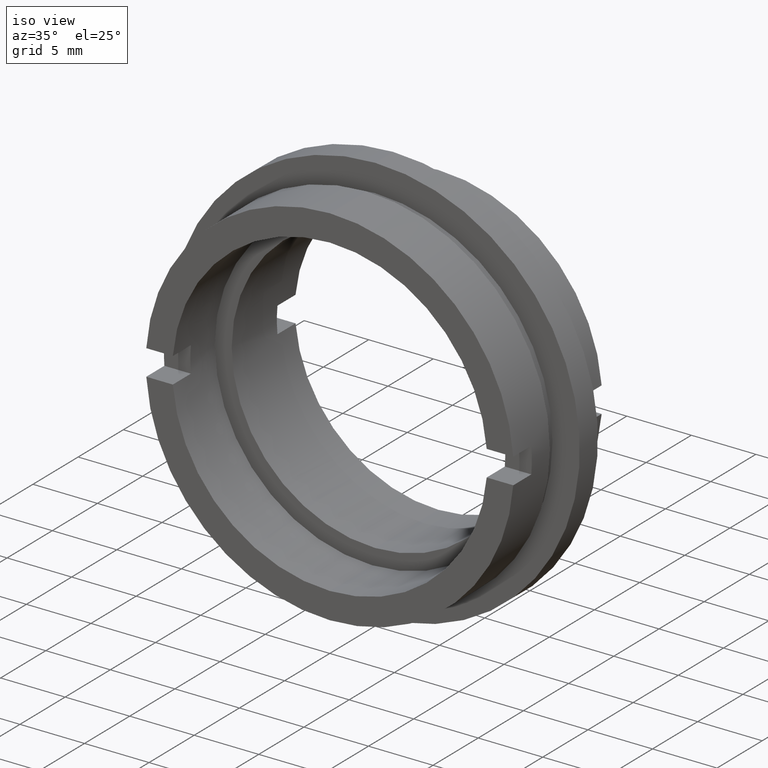
[diagram: clean part render]
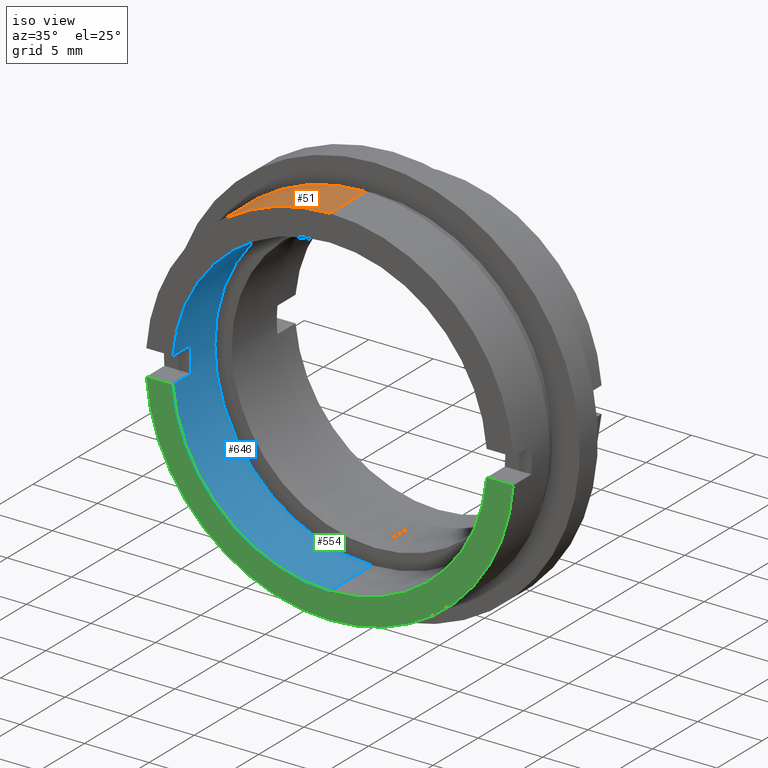
[diagram: same view with three faces highlighted in distinct colors, each labeled with its STEP entity id]
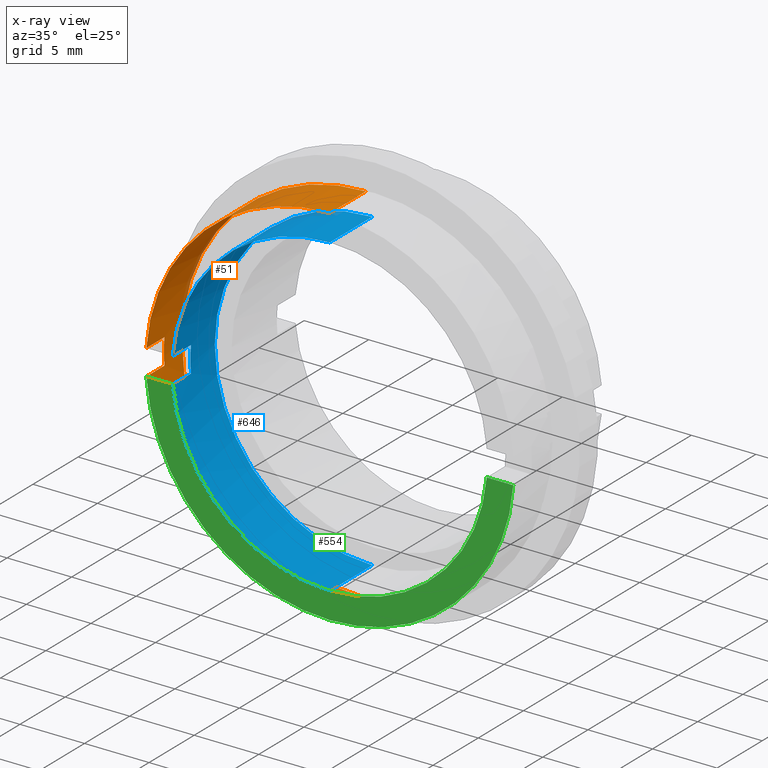
[diagram: x-ray of the same camera — body ghosted, the three highlighted faces saturated]
A machine part, iso view with three faces highlighted in distinct colors.
The next image is the same camera in x-ray (body ghosted, the three faces saturated) — at least one of them is partly hidden behind the body in this view.
Their STEP definitions:

[orange] entity #51 — the highlighted cylindrical surface (partial cylindrical patch) has radius 14.25 mm, axis along (-0, 1, -0).
#18 = LINE ( 'NONE', #288, #382 ) ;
#26 = ORIENTED_EDGE ( 'NONE', *, *, #483, .T. ) ;
#51 = ADVANCED_FACE ( 'NONE', ( #140 ), #834, .T. ) ;
#107 = DIRECTION ( 'NONE',  ( -0.0000000000000000000, 1.000000000000000000, -0.0000000000000000000 ) ) ;
#111 = CARTESIAN_POINT ( 'NONE',  ( -14.21486897582949600, 2.000000000000000000, -0.9999999999999995600 ) ) ;
#126 = CARTESIAN_POINT ( 'NONE',  ( 1.745121688784977800E-015, 0.0000000000000000000, -14.24999999999999600 ) ) ;
#138 = DIRECTION ( 'NONE',  ( 0.0000000000000000000, 0.0000000000000000000, 1.000000000000000000 ) ) ;
#140 = FACE_OUTER_BOUND ( 'NONE', #348, .T. ) ;
#150 = ORIENTED_EDGE ( 'NONE', *, *, #1271, .F. ) ;
#159 = DIRECTION ( 'NONE',  ( -0.0000000000000000000, 1.000000000000000000, -0.0000000000000000000 ) ) ;
#210 = CIRCLE ( 'NONE', #564, 14.24999999999999600 ) ;
#220 = ORIENTED_EDGE ( 'NONE', *, *, #536, .F. ) ;
#263 = VECTOR ( 'NONE', #654, 1000.000000000000000 ) ;
#268 = CARTESIAN_POINT ( 'NONE',  ( -14.21486897582949800, 0.0000000000000000000, 1.000000000000000000 ) ) ;
#272 = AXIS2_PLACEMENT_3D ( 'NONE', #580, #979, #776 ) ;
#283 = DIRECTION ( 'NONE',  ( -0.0000000000000000000, 1.000000000000000000, -0.0000000000000000000 ) ) ;
#288 = CARTESIAN_POINT ( 'NONE',  ( -14.21486897582949800, 22.67749945107591400, 1.000000000000003800 ) ) ;
#302 = DIRECTION ( 'NONE',  ( -0.0000000000000000000, -1.000000000000000000, -0.0000000000000000000 ) ) ;
#305 = CARTESIAN_POINT ( 'NONE',  ( 0.0000000000000000000, 1.999999999999998200, 0.0000000000000000000 ) ) ;
#313 = DIRECTION ( 'NONE',  ( 0.0000000000000000000, 0.0000000000000000000, 1.000000000000000000 ) ) ;
#327 = AXIS2_PLACEMENT_3D ( 'NONE', #575, #604, #599 ) ;
#348 = EDGE_LOOP ( 'NONE', ( #1005, #760, #860, #150, #695, #26, #1004, #220 ) ) ;
#382 = VECTOR ( 'NONE', #283, 1000.000000000000000 ) ;
#402 = LINE ( 'NONE', #712, #567 ) ;
#482 = DIRECTION ( 'NONE',  ( 0.0000000000000000000, 0.0000000000000000000, 1.000000000000000000 ) ) ;
#483 = EDGE_CURVE ( 'NONE', #696, #1335, #210, .T. ) ;
#533 = CARTESIAN_POINT ( 'NONE',  ( -14.21486897582949800, 0.0000000000000000000, -1.000000000000000000 ) ) ;
#536 = EDGE_CURVE ( 'NONE', #1291, #1201, #1212, .T. ) ;
#546 = AXIS2_PLACEMENT_3D ( 'NONE', #305, #302, #313 ) ;
#564 = AXIS2_PLACEMENT_3D ( 'NONE', #1135, #159, #138 ) ;
#567 = VECTOR ( 'NONE', #708, 1000.000000000000000 ) ;
#570 = VERTEX_POINT ( 'NONE', #111 ) ;
#575 = CARTESIAN_POINT ( 'NONE',  ( 0.0000000000000000000, 0.0000000000000000000, 0.0000000000000000000 ) ) ;
#579 = CARTESIAN_POINT ( 'NONE',  ( 1.745121688784977800E-015, 4.000000000000000000, -14.24999999999999600 ) ) ;
#580 = CARTESIAN_POINT ( 'NONE',  ( 0.0000000000000000000, 4.000000000000000000, 0.0000000000000000000 ) ) ;
#596 = CARTESIAN_POINT ( 'NONE',  ( 0.0000000000000000000, 4.000000000000000000, 14.24999999999999600 ) ) ;
#599 = DIRECTION ( 'NONE',  ( 0.0000000000000000000, 0.0000000000000000000, 1.000000000000000000 ) ) ;
#604 = DIRECTION ( 'NONE',  ( -0.0000000000000000000, 1.000000000000000000, -0.0000000000000000000 ) ) ;
#625 = CARTESIAN_POINT ( 'NONE',  ( -14.21486897582949800, 1.999999999999998200, 1.000000000000000200 ) ) ;
#654 = DIRECTION ( 'NONE',  ( -0.0000000000000000000, 1.000000000000000000, -0.0000000000000000000 ) ) ;
#676 = AXIS2_PLACEMENT_3D ( 'NONE', #1264, #107, #482 ) ;
#695 = ORIENTED_EDGE ( 'NONE', *, *, #1254, .F. ) ;
#696 = VERTEX_POINT ( 'NONE', #268 ) ;
#708 = DIRECTION ( 'NONE',  ( 0.0000000000000000000, -1.000000000000000000, 0.0000000000000000000 ) ) ;
#712 = CARTESIAN_POINT ( 'NONE',  ( -14.21486897582949600, 22.67749945107591400, -0.9999999999999943400 ) ) ;
#716 = VECTOR ( 'NONE', #746, 1000.000000000000000 ) ;
#746 = DIRECTION ( 'NONE',  ( -0.0000000000000000000, 1.000000000000000000, -0.0000000000000000000 ) ) ;
#760 = ORIENTED_EDGE ( 'NONE', *, *, #1184, .T. ) ;
#765 = CARTESIAN_POINT ( 'NONE',  ( 0.0000000000000000000, 0.0000000000000000000, 14.24999999999999600 ) ) ;
#776 = DIRECTION ( 'NONE',  ( 0.0000000000000000000, 0.0000000000000000000, 1.000000000000000000 ) ) ;
#817 = CARTESIAN_POINT ( 'NONE',  ( 1.745121688784977800E-015, 22.67749945107591400, -14.24999999999999600 ) ) ;
#834 = CYLINDRICAL_SURFACE ( 'NONE', #676, 14.24999999999999600 ) ;
#860 = ORIENTED_EDGE ( 'NONE', *, *, #1165, .F. ) ;
#878 = EDGE_CURVE ( 'NONE', #1335, #1201, #1002, .T. ) ;
#906 = CIRCLE ( 'NONE', #546, 14.24999999999999600 ) ;
#979 = DIRECTION ( 'NONE',  ( -0.0000000000000000000, 1.000000000000000000, -0.0000000000000000000 ) ) ;
#1002 = LINE ( 'NONE', #1060, #263 ) ;
#1004 = ORIENTED_EDGE ( 'NONE', *, *, #878, .T. ) ;
#1005 = ORIENTED_EDGE ( 'NONE', *, *, #1324, .F. ) ;
#1028 = LINE ( 'NONE', #817, #716 ) ;
#1060 = CARTESIAN_POINT ( 'NONE',  ( 0.0000000000000000000, 22.67749945107591400, 14.24999999999999600 ) ) ;
#1086 = VERTEX_POINT ( 'NONE', #625 ) ;
#1135 = CARTESIAN_POINT ( 'NONE',  ( 0.0000000000000000000, 0.0000000000000000000, 0.0000000000000000000 ) ) ;
#1165 = EDGE_CURVE ( 'NONE', #570, #1316, #402, .T. ) ;
#1184 = EDGE_CURVE ( 'NONE', #1244, #1316, #1258, .T. ) ;
#1201 = VERTEX_POINT ( 'NONE', #596 ) ;
#1212 = CIRCLE ( 'NONE', #272, 14.24999999999999600 ) ;
#1244 = VERTEX_POINT ( 'NONE', #126 ) ;
#1254 = EDGE_CURVE ( 'NONE', #696, #1086, #18, .T. ) ;
#1258 = CIRCLE ( 'NONE', #327, 14.24999999999999600 ) ;
#1264 = CARTESIAN_POINT ( 'NONE',  ( 0.0000000000000000000, 22.67749945107591400, 0.0000000000000000000 ) ) ;
#1271 = EDGE_CURVE ( 'NONE', #1086, #570, #906, .T. ) ;
#1291 = VERTEX_POINT ( 'NONE', #579 ) ;
#1316 = VERTEX_POINT ( 'NONE', #533 ) ;
#1324 = EDGE_CURVE ( 'NONE', #1244, #1291, #1028, .T. ) ;
#1335 = VERTEX_POINT ( 'NONE', #765 ) ;

[blue] entity #646 — the highlighted cylindrical surface (partial cylindrical patch) has radius 12.2 mm, axis along (-0, 1, -0).
#10 = AXIS2_PLACEMENT_3D ( 'NONE', #827, #833, #1120 ) ;
#39 = CARTESIAN_POINT ( 'NONE',  ( -12.15894732285652700, 22.67749945107591400, 1.000000000000003800 ) ) ;
#45 = CARTESIAN_POINT ( 'NONE',  ( 0.0000000000000000000, 0.0000000000000000000, 12.19999999999999600 ) ) ;
#49 = DIRECTION ( 'NONE',  ( 0.0000000000000000000, 0.0000000000000000000, 1.000000000000000000 ) ) ;
#65 = DIRECTION ( 'NONE',  ( -0.0000000000000000000, 1.000000000000000000, -0.0000000000000000000 ) ) ;
#84 = CIRCLE ( 'NONE', #787, 12.19999999999999400 ) ;
#102 = ORIENTED_EDGE ( 'NONE', *, *, #705, .F. ) ;
#118 = ORIENTED_EDGE ( 'NONE', *, *, #503, .F. ) ;
#122 = CARTESIAN_POINT ( 'NONE',  ( 1.494069094959770300E-015, 4.699999999999999300, -12.19999999999999400 ) ) ;
#124 = CIRCLE ( 'NONE', #10, 12.19999999999999600 ) ;
#182 = CYLINDRICAL_SURFACE ( 'NONE', #999, 12.19999999999999600 ) ;
#204 = CARTESIAN_POINT ( 'NONE',  ( -12.15894732285652300, 2.000000000000000000, -0.9999999999999995600 ) ) ;
#227 = CARTESIAN_POINT ( 'NONE',  ( 0.0000000000000000000, 4.699999999999999300, 0.0000000000000000000 ) ) ;
#236 = EDGE_CURVE ( 'NONE', #354, #629, #124, .T. ) ;
#253 = ORIENTED_EDGE ( 'NONE', *, *, #236, .F. ) ;
#274 = FACE_OUTER_BOUND ( 'NONE', #338, .T. ) ;
#325 = AXIS2_PLACEMENT_3D ( 'NONE', #1034, #637, #399 ) ;
#338 = EDGE_LOOP ( 'NONE', ( #253, #590, #803, #459, #992, #102, #118, #822 ) ) ;
#354 = VERTEX_POINT ( 'NONE', #869 ) ;
#359 = DIRECTION ( 'NONE',  ( -0.0000000000000000000, 1.000000000000000000, -0.0000000000000000000 ) ) ;
#371 = VERTEX_POINT ( 'NONE', #204 ) ;
#385 = VECTOR ( 'NONE', #578, 1000.000000000000000 ) ;
#399 = DIRECTION ( 'NONE',  ( 0.0000000000000000000, 0.0000000000000000000, 1.000000000000000000 ) ) ;
#432 = VERTEX_POINT ( 'NONE', #1248 ) ;
#452 = VECTOR ( 'NONE', #644, 1000.000000000000000 ) ;
#454 = LINE ( 'NONE', #583, #385 ) ;
#455 = CARTESIAN_POINT ( 'NONE',  ( 0.0000000000000000000, 22.67749945107591400, 0.0000000000000000000 ) ) ;
#459 = ORIENTED_EDGE ( 'NONE', *, *, #950, .F. ) ;
#503 = EDGE_CURVE ( 'NONE', #371, #432, #565, .T. ) ;
#539 = CARTESIAN_POINT ( 'NONE',  ( 0.0000000000000000000, 22.67749945107591400, 12.19999999999999600 ) ) ;
#565 = CIRCLE ( 'NONE', #325, 12.19999999999999600 ) ;
#568 = DIRECTION ( 'NONE',  ( 0.0000000000000000000, -1.000000000000000000, 0.0000000000000000000 ) ) ;
#578 = DIRECTION ( 'NONE',  ( -0.0000000000000000000, 1.000000000000000000, -0.0000000000000000000 ) ) ;
#583 = CARTESIAN_POINT ( 'NONE',  ( -12.15894732285652500, 22.67749945107591400, -0.9999999999999943400 ) ) ;
#590 = ORIENTED_EDGE ( 'NONE', *, *, #647, .T. ) ;
#602 = DIRECTION ( 'NONE',  ( 0.0000000000000000000, 0.0000000000000000000, 1.000000000000000000 ) ) ;
#629 = VERTEX_POINT ( 'NONE', #1274 ) ;
#637 = DIRECTION ( 'NONE',  ( 0.0000000000000000000, 1.000000000000000000, 0.0000000000000000000 ) ) ;
#643 = CIRCLE ( 'NONE', #828, 12.19999999999999600 ) ;
#644 = DIRECTION ( 'NONE',  ( -0.0000000000000000000, 1.000000000000000000, -0.0000000000000000000 ) ) ;
#646 = ADVANCED_FACE ( 'NONE', ( #274 ), #182, .F. ) ;
#647 = EDGE_CURVE ( 'NONE', #354, #764, #1063, .T. ) ;
#664 = EDGE_CURVE ( 'NONE', #764, #1053, #84, .T. ) ;
#666 = CARTESIAN_POINT ( 'NONE',  ( 0.0000000000000000000, 4.699999999999999300, 12.19999999999999400 ) ) ;
#679 = VECTOR ( 'NONE', #568, 1000.000000000000000 ) ;
#705 = EDGE_CURVE ( 'NONE', #432, #935, #1308, .T. ) ;
#764 = VERTEX_POINT ( 'NONE', #122 ) ;
#787 = AXIS2_PLACEMENT_3D ( 'NONE', #227, #65, #49 ) ;
#803 = ORIENTED_EDGE ( 'NONE', *, *, #664, .T. ) ;
#822 = ORIENTED_EDGE ( 'NONE', *, *, #846, .F. ) ;
#827 = CARTESIAN_POINT ( 'NONE',  ( 0.0000000000000000000, 0.0000000000000000000, 0.0000000000000000000 ) ) ;
#828 = AXIS2_PLACEMENT_3D ( 'NONE', #1213, #359, #602 ) ;
#833 = DIRECTION ( 'NONE',  ( -0.0000000000000000000, 1.000000000000000000, -0.0000000000000000000 ) ) ;
#846 = EDGE_CURVE ( 'NONE', #629, #371, #454, .T. ) ;
#869 = CARTESIAN_POINT ( 'NONE',  ( 1.494069094959770500E-015, 0.0000000000000000000, -12.19999999999999600 ) ) ;
#877 = DIRECTION ( 'NONE',  ( -0.0000000000000000000, 1.000000000000000000, -0.0000000000000000000 ) ) ;
#935 = VERTEX_POINT ( 'NONE', #1309 ) ;
#950 = EDGE_CURVE ( 'NONE', #1087, #1053, #1228, .T. ) ;
#992 = ORIENTED_EDGE ( 'NONE', *, *, #1027, .F. ) ;
#997 = CARTESIAN_POINT ( 'NONE',  ( 1.494069094959770500E-015, 22.67749945107591400, -12.19999999999999600 ) ) ;
#999 = AXIS2_PLACEMENT_3D ( 'NONE', #455, #1113, #1172 ) ;
#1027 = EDGE_CURVE ( 'NONE', #935, #1087, #643, .T. ) ;
#1034 = CARTESIAN_POINT ( 'NONE',  ( 0.0000000000000000000, 1.999999999999998200, 0.0000000000000000000 ) ) ;
#1053 = VERTEX_POINT ( 'NONE', #666 ) ;
#1063 = LINE ( 'NONE', #997, #452 ) ;
#1087 = VERTEX_POINT ( 'NONE', #45 ) ;
#1113 = DIRECTION ( 'NONE',  ( -0.0000000000000000000, 1.000000000000000000, -0.0000000000000000000 ) ) ;
#1120 = DIRECTION ( 'NONE',  ( 0.0000000000000000000, 0.0000000000000000000, 1.000000000000000000 ) ) ;
#1172 = DIRECTION ( 'NONE',  ( 0.0000000000000000000, 0.0000000000000000000, 1.000000000000000000 ) ) ;
#1213 = CARTESIAN_POINT ( 'NONE',  ( 0.0000000000000000000, 0.0000000000000000000, 0.0000000000000000000 ) ) ;
#1228 = LINE ( 'NONE', #539, #1241 ) ;
#1241 = VECTOR ( 'NONE', #877, 1000.000000000000000 ) ;
#1248 = CARTESIAN_POINT ( 'NONE',  ( -12.15894732285652700, 1.999999999999998200, 1.000000000000000200 ) ) ;
#1274 = CARTESIAN_POINT ( 'NONE',  ( -12.15894732285652900, 0.0000000000000000000, -0.9999999999999945600 ) ) ;
#1308 = LINE ( 'NONE', #39, #679 ) ;
#1309 = CARTESIAN_POINT ( 'NONE',  ( -12.15894732285652700, 0.0000000000000000000, 1.000000000000003800 ) ) ;

[green] entity #554 — the highlighted planar face has unit normal (0, -1, 0).
#5 = DIRECTION ( 'NONE',  ( 1.000000000000000000, 0.0000000000000000000, 0.0000000000000000000 ) ) ;
#9 = CARTESIAN_POINT ( 'NONE',  ( -14.24999999999999600, 0.0000000000000000000, -1.000000000000000000 ) ) ;
#10 = AXIS2_PLACEMENT_3D ( 'NONE', #827, #833, #1120 ) ;
#52 = AXIS2_PLACEMENT_3D ( 'NONE', #724, #904, #876 ) ;
#54 = DIRECTION ( 'NONE',  ( 0.0000000000000000000, 0.0000000000000000000, 1.000000000000000000 ) ) ;
#70 = FACE_OUTER_BOUND ( 'NONE', #761, .T. ) ;
#98 = ORIENTED_EDGE ( 'NONE', *, *, #355, .F. ) ;
#124 = CIRCLE ( 'NONE', #10, 12.19999999999999600 ) ;
#126 = CARTESIAN_POINT ( 'NONE',  ( 1.745121688784977800E-015, 0.0000000000000000000, -14.24999999999999600 ) ) ;
#146 = VECTOR ( 'NONE', #993, 1000.000000000000000 ) ;
#181 = LINE ( 'NONE', #9, #146 ) ;
#205 = AXIS2_PLACEMENT_3D ( 'NONE', #866, #234, #1299 ) ;
#234 = DIRECTION ( 'NONE',  ( -0.0000000000000000000, 1.000000000000000000, -0.0000000000000000000 ) ) ;
#236 = EDGE_CURVE ( 'NONE', #354, #629, #124, .T. ) ;
#247 = CIRCLE ( 'NONE', #205, 12.19999999999999600 ) ;
#286 = CARTESIAN_POINT ( 'NONE',  ( 12.15894732285652500, 0.0000000000000000000, -0.9999999999999943400 ) ) ;
#295 = LINE ( 'NONE', #1253, #970 ) ;
#327 = AXIS2_PLACEMENT_3D ( 'NONE', #575, #604, #599 ) ;
#331 = AXIS2_PLACEMENT_3D ( 'NONE', #778, #835, #54 ) ;
#354 = VERTEX_POINT ( 'NONE', #869 ) ;
#355 = EDGE_CURVE ( 'NONE', #611, #615, #181, .T. ) ;
#367 = ORIENTED_EDGE ( 'NONE', *, *, #737, .F. ) ;
#383 = EDGE_CURVE ( 'NONE', #611, #354, #247, .T. ) ;
#427 = CIRCLE ( 'NONE', #331, 14.24999999999999600 ) ;
#513 = ORIENTED_EDGE ( 'NONE', *, *, #236, .T. ) ;
#533 = CARTESIAN_POINT ( 'NONE',  ( -14.21486897582949800, 0.0000000000000000000, -1.000000000000000000 ) ) ;
#554 = ADVANCED_FACE ( 'NONE', ( #70 ), #589, .T. ) ;
#575 = CARTESIAN_POINT ( 'NONE',  ( 0.0000000000000000000, 0.0000000000000000000, 0.0000000000000000000 ) ) ;
#589 = PLANE ( 'NONE',  #52 ) ;
#599 = DIRECTION ( 'NONE',  ( 0.0000000000000000000, 0.0000000000000000000, 1.000000000000000000 ) ) ;
#604 = DIRECTION ( 'NONE',  ( -0.0000000000000000000, 1.000000000000000000, -0.0000000000000000000 ) ) ;
#611 = VERTEX_POINT ( 'NONE', #286 ) ;
#615 = VERTEX_POINT ( 'NONE', #783 ) ;
#629 = VERTEX_POINT ( 'NONE', #1274 ) ;
#724 = CARTESIAN_POINT ( 'NONE',  ( -14.24999999999999600, 0.0000000000000000000, 0.0000000000000000000 ) ) ;
#737 = EDGE_CURVE ( 'NONE', #1316, #629, #295, .T. ) ;
#761 = EDGE_LOOP ( 'NONE', ( #367, #980, #1175, #98, #1096, #513 ) ) ;
#778 = CARTESIAN_POINT ( 'NONE',  ( 0.0000000000000000000, 0.0000000000000000000, 0.0000000000000000000 ) ) ;
#783 = CARTESIAN_POINT ( 'NONE',  ( 14.21486897582949800, 0.0000000000000000000, -1.000000000000000000 ) ) ;
#827 = CARTESIAN_POINT ( 'NONE',  ( 0.0000000000000000000, 0.0000000000000000000, 0.0000000000000000000 ) ) ;
#833 = DIRECTION ( 'NONE',  ( -0.0000000000000000000, 1.000000000000000000, -0.0000000000000000000 ) ) ;
#835 = DIRECTION ( 'NONE',  ( -0.0000000000000000000, 1.000000000000000000, -0.0000000000000000000 ) ) ;
#866 = CARTESIAN_POINT ( 'NONE',  ( 0.0000000000000000000, 0.0000000000000000000, 0.0000000000000000000 ) ) ;
#869 = CARTESIAN_POINT ( 'NONE',  ( 1.494069094959770500E-015, 0.0000000000000000000, -12.19999999999999600 ) ) ;
#876 = DIRECTION ( 'NONE',  ( 0.0000000000000000000, -0.0000000000000000000, -1.000000000000000000 ) ) ;
#904 = DIRECTION ( 'NONE',  ( 0.0000000000000000000, -1.000000000000000000, 0.0000000000000000000 ) ) ;
#970 = VECTOR ( 'NONE', #5, 1000.000000000000000 ) ;
#980 = ORIENTED_EDGE ( 'NONE', *, *, #1184, .F. ) ;
#993 = DIRECTION ( 'NONE',  ( 1.000000000000000000, 0.0000000000000000000, 0.0000000000000000000 ) ) ;
#1022 = EDGE_CURVE ( 'NONE', #615, #1244, #427, .T. ) ;
#1096 = ORIENTED_EDGE ( 'NONE', *, *, #383, .T. ) ;
#1120 = DIRECTION ( 'NONE',  ( 0.0000000000000000000, 0.0000000000000000000, 1.000000000000000000 ) ) ;
#1175 = ORIENTED_EDGE ( 'NONE', *, *, #1022, .F. ) ;
#1184 = EDGE_CURVE ( 'NONE', #1244, #1316, #1258, .T. ) ;
#1244 = VERTEX_POINT ( 'NONE', #126 ) ;
#1253 = CARTESIAN_POINT ( 'NONE',  ( -14.24999999999999600, 0.0000000000000000000, -1.000000000000000000 ) ) ;
#1258 = CIRCLE ( 'NONE', #327, 14.24999999999999600 ) ;
#1274 = CARTESIAN_POINT ( 'NONE',  ( -12.15894732285652900, 0.0000000000000000000, -0.9999999999999945600 ) ) ;
#1299 = DIRECTION ( 'NONE',  ( 0.0000000000000000000, 0.0000000000000000000, 1.000000000000000000 ) ) ;
#1316 = VERTEX_POINT ( 'NONE', #533 ) ;